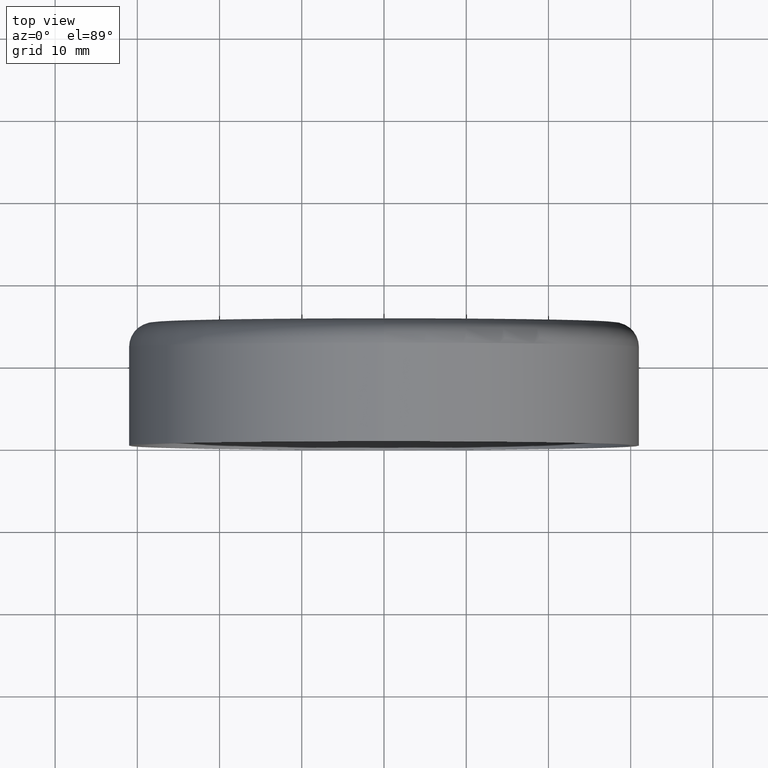
[diagram: clean part render]
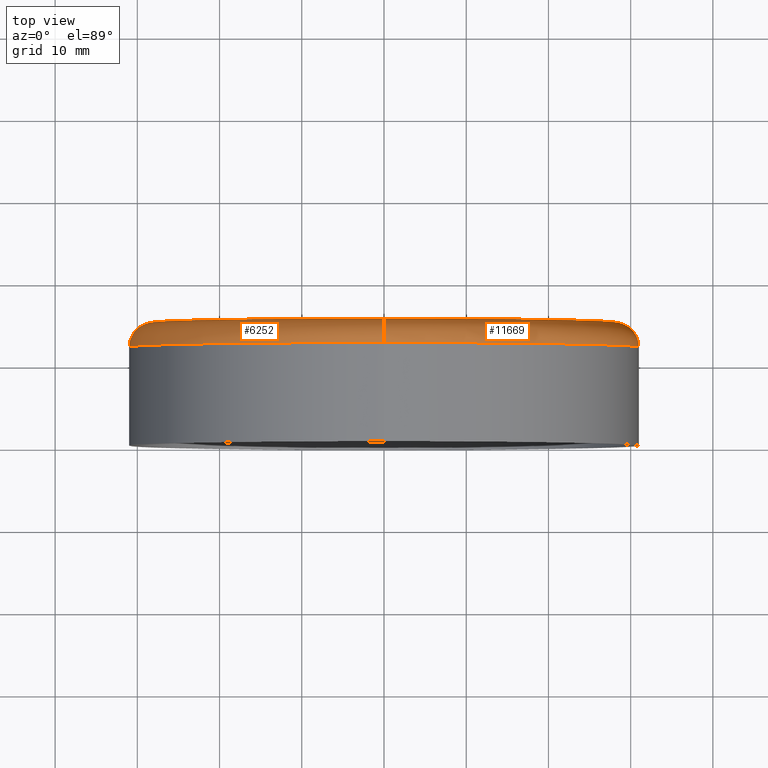
[diagram: same view with one multi-face feature highlighted, each face labeled with its STEP entity id]
A machine part, top view. The highlighted faces form ONE feature: a constant-radius fillet chain: 2 tangent blend faces with common blend radius 3 mm. The faces share edges in the B-rep.
Their STEP definitions:
[1] entity #6252 (Torus):
#110 = DIRECTION ( 'NONE',  ( 0.000000000000000000, 0.000000000000000000, 1.000000000000000000 ) ) ;
#221 = VERTEX_POINT ( 'NONE', #15718 ) ;
#692 = DIRECTION ( 'NONE',  ( -1.224646799147351975E-16, 0.000000000000000000, -1.000000000000000000 ) ) ;
#923 = EDGE_CURVE ( 'NONE', #9507, #221, #9345, .T. ) ;
#2145 = ORIENTED_EDGE ( 'NONE', *, *, #6753, .T. ) ;
#2472 = ORIENTED_EDGE ( 'NONE', *, *, #5522, .T. ) ;
#3529 = AXIS2_PLACEMENT_3D ( 'NONE', #17178, #10686, #110 ) ;
#3815 = CARTESIAN_POINT ( 'NONE',  ( 0.000000000000000000, 15.00000000000000000, -27.99999999999999645 ) ) ;
#3848 = CARTESIAN_POINT ( 'NONE',  ( 0.000000000000000000, 12.00000000000000000, 0.000000000000000000 ) ) ;
#3926 = ORIENTED_EDGE ( 'NONE', *, *, #923, .F. ) ;
#4682 = CIRCLE ( 'NONE', #7122, 31.00000000000000000 ) ;
#5229 = CIRCLE ( 'NONE', #3529, 3.000000000000002665 ) ;
#5522 = EDGE_CURVE ( 'NONE', #13266, #8568, #5229, .T. ) ;
#6252 = ADVANCED_FACE ( 'NONE', ( #17075 ), #7301, .T. ) ;
#6753 = EDGE_CURVE ( 'NONE', #9507, #13266, #11698, .T. ) ;
#6773 = CARTESIAN_POINT ( 'NONE',  ( 0.000000000000000000, 12.00000000000000000, 0.000000000000000000 ) ) ;
#7059 = AXIS2_PLACEMENT_3D ( 'NONE', #3848, #17082, #7620 ) ;
#7122 = AXIS2_PLACEMENT_3D ( 'NONE', #6773, #15964, #13250 ) ;
#7184 = CARTESIAN_POINT ( 'NONE',  ( 0.000000000000000000, 12.00000000000000000, -31.00000000000000000 ) ) ;
#7301 = TOROIDAL_SURFACE ( 'NONE', #7059, 27.99999999999999645, 3.000000000000000888 ) ;
#7620 = DIRECTION ( 'NONE',  ( 0.000000000000000000, 0.000000000000000000, -1.000000000000000000 ) ) ;
#8296 = ORIENTED_EDGE ( 'NONE', *, *, #15600, .F. ) ;
#8568 = VERTEX_POINT ( 'NONE', #7184 ) ;
#8645 = AXIS2_PLACEMENT_3D ( 'NONE', #11963, #9291, #12126 ) ;
#8867 = AXIS2_PLACEMENT_3D ( 'NONE', #11443, #12769, #692 ) ;
#9291 = DIRECTION ( 'NONE',  ( -0.000000000000000000, -1.000000000000000000, -0.000000000000000000 ) ) ;
#9345 = CIRCLE ( 'NONE', #8867, 3.000000000000002665 ) ;
#9507 = VERTEX_POINT ( 'NONE', #15527 ) ;
#10686 = DIRECTION ( 'NONE',  ( -1.000000000000000000, 0.000000000000000000, 0.000000000000000000 ) ) ;
#11443 = CARTESIAN_POINT ( 'NONE',  ( 3.429011037612588881E-15, 12.00000000000000000, 27.99999999999999645 ) ) ;
#11698 = CIRCLE ( 'NONE', #8645, 27.99999999999999645 ) ;
#11963 = CARTESIAN_POINT ( 'NONE',  ( 0.000000000000000000, 15.00000000000000000, 0.000000000000000000 ) ) ;
#12126 = DIRECTION ( 'NONE',  ( 0.000000000000000000, 0.000000000000000000, -1.000000000000000000 ) ) ;
#12769 = DIRECTION ( 'NONE',  ( 1.000000000000000000, 0.000000000000000000, -1.224646799147353207E-16 ) ) ;
#13250 = DIRECTION ( 'NONE',  ( 0.000000000000000000, 0.000000000000000000, -1.000000000000000000 ) ) ;
#13266 = VERTEX_POINT ( 'NONE', #3815 ) ;
#15527 = CARTESIAN_POINT ( 'NONE',  ( 3.612708057484691604E-15, 15.00000000000000000, 27.99999999999999645 ) ) ;
#15530 = EDGE_LOOP ( 'NONE', ( #3926, #2145, #2472, #8296 ) ) ;
#15600 = EDGE_CURVE ( 'NONE', #221, #8568, #4682, .T. ) ;
#15718 = CARTESIAN_POINT ( 'NONE',  ( 3.796405077356795115E-15, 12.00000000000000000, 31.00000000000000000 ) ) ;
#15964 = DIRECTION ( 'NONE',  ( -0.000000000000000000, -1.000000000000000000, -0.000000000000000000 ) ) ;
#17075 = FACE_OUTER_BOUND ( 'NONE', #15530, .T. ) ;
#17082 = DIRECTION ( 'NONE',  ( -0.000000000000000000, -1.000000000000000000, -0.000000000000000000 ) ) ;
#17178 = CARTESIAN_POINT ( 'NONE',  ( 0.000000000000000000, 12.00000000000000000, -27.99999999999999645 ) ) ;
[2] entity #11669 (Torus):
#110 = DIRECTION ( 'NONE',  ( 0.000000000000000000, 0.000000000000000000, 1.000000000000000000 ) ) ;
#221 = VERTEX_POINT ( 'NONE', #15718 ) ;
#369 = DIRECTION ( 'NONE',  ( 0.000000000000000000, 0.000000000000000000, -1.000000000000000000 ) ) ;
#527 = EDGE_CURVE ( 'NONE', #8568, #221, #2479, .T. ) ;
#692 = DIRECTION ( 'NONE',  ( -1.224646799147351975E-16, 0.000000000000000000, -1.000000000000000000 ) ) ;
#923 = EDGE_CURVE ( 'NONE', #9507, #221, #9345, .T. ) ;
#2479 = CIRCLE ( 'NONE', #4828, 31.00000000000000000 ) ;
#2564 = DIRECTION ( 'NONE',  ( 0.000000000000000000, 0.000000000000000000, -1.000000000000000000 ) ) ;
#3516 = ORIENTED_EDGE ( 'NONE', *, *, #923, .T. ) ;
#3529 = AXIS2_PLACEMENT_3D ( 'NONE', #17178, #10686, #110 ) ;
#3536 = DIRECTION ( 'NONE',  ( -0.000000000000000000, -1.000000000000000000, -0.000000000000000000 ) ) ;
#3736 = DIRECTION ( 'NONE',  ( -0.000000000000000000, -1.000000000000000000, -0.000000000000000000 ) ) ;
#3815 = CARTESIAN_POINT ( 'NONE',  ( 0.000000000000000000, 15.00000000000000000, -27.99999999999999645 ) ) ;
#4828 = AXIS2_PLACEMENT_3D ( 'NONE', #16277, #8327, #369 ) ;
#5229 = CIRCLE ( 'NONE', #3529, 3.000000000000002665 ) ;
#5522 = EDGE_CURVE ( 'NONE', #13266, #8568, #5229, .T. ) ;
#5983 = AXIS2_PLACEMENT_3D ( 'NONE', #12368, #3536, #12827 ) ;
#7184 = CARTESIAN_POINT ( 'NONE',  ( 0.000000000000000000, 12.00000000000000000, -31.00000000000000000 ) ) ;
#7788 = CARTESIAN_POINT ( 'NONE',  ( 0.000000000000000000, 15.00000000000000000, 0.000000000000000000 ) ) ;
#8327 = DIRECTION ( 'NONE',  ( -0.000000000000000000, -1.000000000000000000, -0.000000000000000000 ) ) ;
#8568 = VERTEX_POINT ( 'NONE', #7184 ) ;
#8737 = ORIENTED_EDGE ( 'NONE', *, *, #5522, .F. ) ;
#8867 = AXIS2_PLACEMENT_3D ( 'NONE', #11443, #12769, #692 ) ;
#9345 = CIRCLE ( 'NONE', #8867, 3.000000000000002665 ) ;
#9507 = VERTEX_POINT ( 'NONE', #15527 ) ;
#10686 = DIRECTION ( 'NONE',  ( -1.000000000000000000, 0.000000000000000000, 0.000000000000000000 ) ) ;
#10998 = ORIENTED_EDGE ( 'NONE', *, *, #12450, .T. ) ;
#11189 = FACE_OUTER_BOUND ( 'NONE', #11685, .T. ) ;
#11443 = CARTESIAN_POINT ( 'NONE',  ( 3.429011037612588881E-15, 12.00000000000000000, 27.99999999999999645 ) ) ;
#11669 = ADVANCED_FACE ( 'NONE', ( #11189 ), #13668, .T. ) ;
#11685 = EDGE_LOOP ( 'NONE', ( #10998, #3516, #15842, #8737 ) ) ;
#12001 = CIRCLE ( 'NONE', #14881, 27.99999999999999645 ) ;
#12368 = CARTESIAN_POINT ( 'NONE',  ( 0.000000000000000000, 12.00000000000000000, 0.000000000000000000 ) ) ;
#12450 = EDGE_CURVE ( 'NONE', #13266, #9507, #12001, .T. ) ;
#12769 = DIRECTION ( 'NONE',  ( 1.000000000000000000, 0.000000000000000000, -1.224646799147353207E-16 ) ) ;
#12827 = DIRECTION ( 'NONE',  ( 0.000000000000000000, 0.000000000000000000, -1.000000000000000000 ) ) ;
#13266 = VERTEX_POINT ( 'NONE', #3815 ) ;
#13668 = TOROIDAL_SURFACE ( 'NONE', #5983, 27.99999999999999645, 3.000000000000000888 ) ;
#14881 = AXIS2_PLACEMENT_3D ( 'NONE', #7788, #3736, #2564 ) ;
#15527 = CARTESIAN_POINT ( 'NONE',  ( 3.612708057484691604E-15, 15.00000000000000000, 27.99999999999999645 ) ) ;
#15718 = CARTESIAN_POINT ( 'NONE',  ( 3.796405077356795115E-15, 12.00000000000000000, 31.00000000000000000 ) ) ;
#15842 = ORIENTED_EDGE ( 'NONE', *, *, #527, .F. ) ;
#16277 = CARTESIAN_POINT ( 'NONE',  ( 0.000000000000000000, 12.00000000000000000, 0.000000000000000000 ) ) ;
#17178 = CARTESIAN_POINT ( 'NONE',  ( 0.000000000000000000, 12.00000000000000000, -27.99999999999999645 ) ) ;